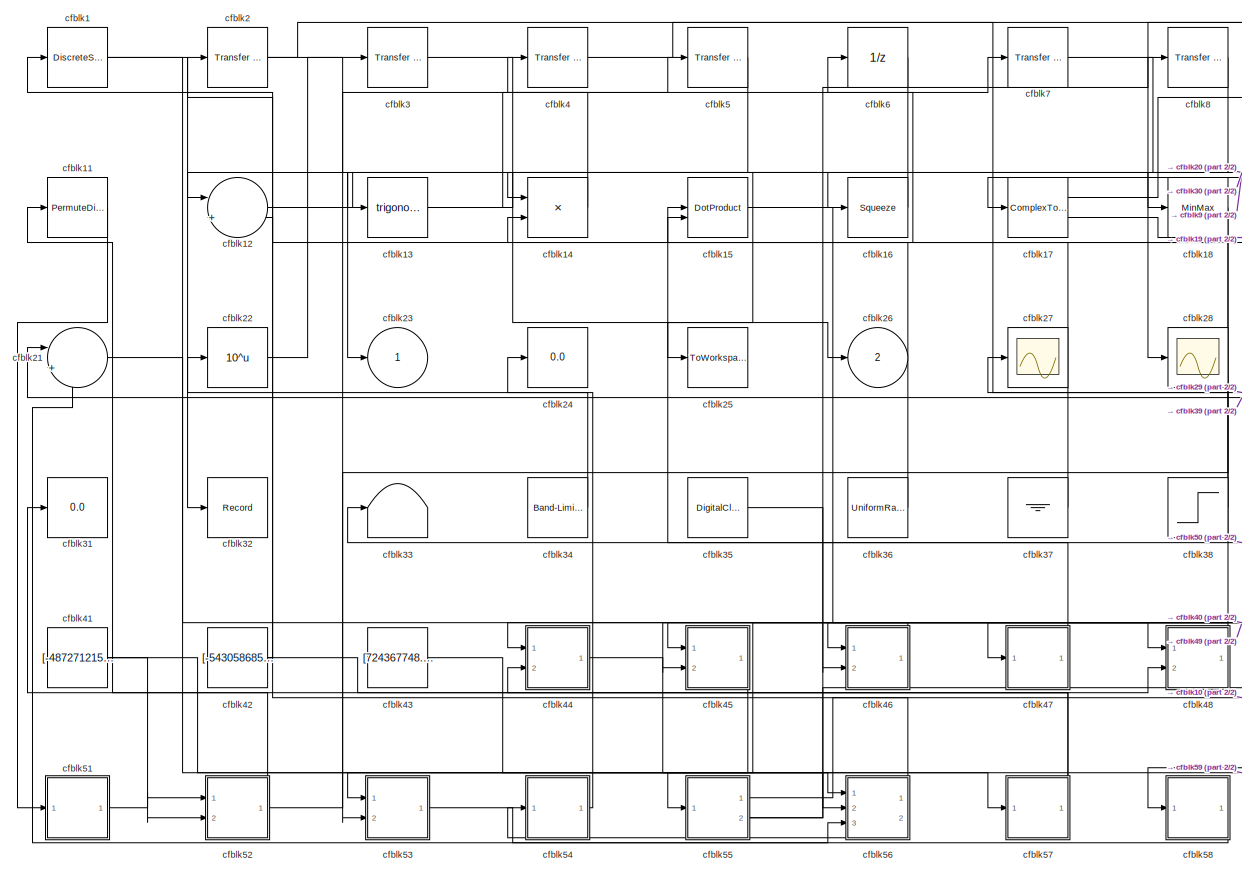
[diagram: root canvas - part 1/2, most of the canvas]
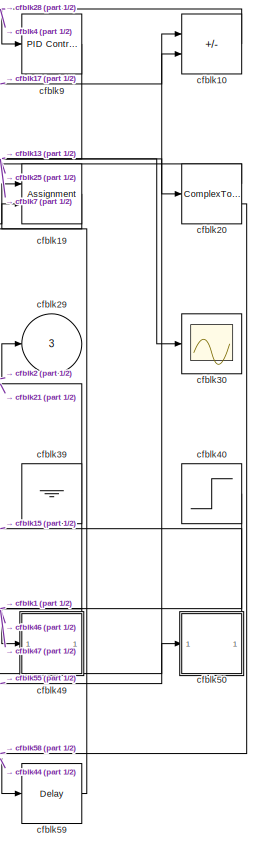
[diagram: root canvas - part 2/2, right side, full height]
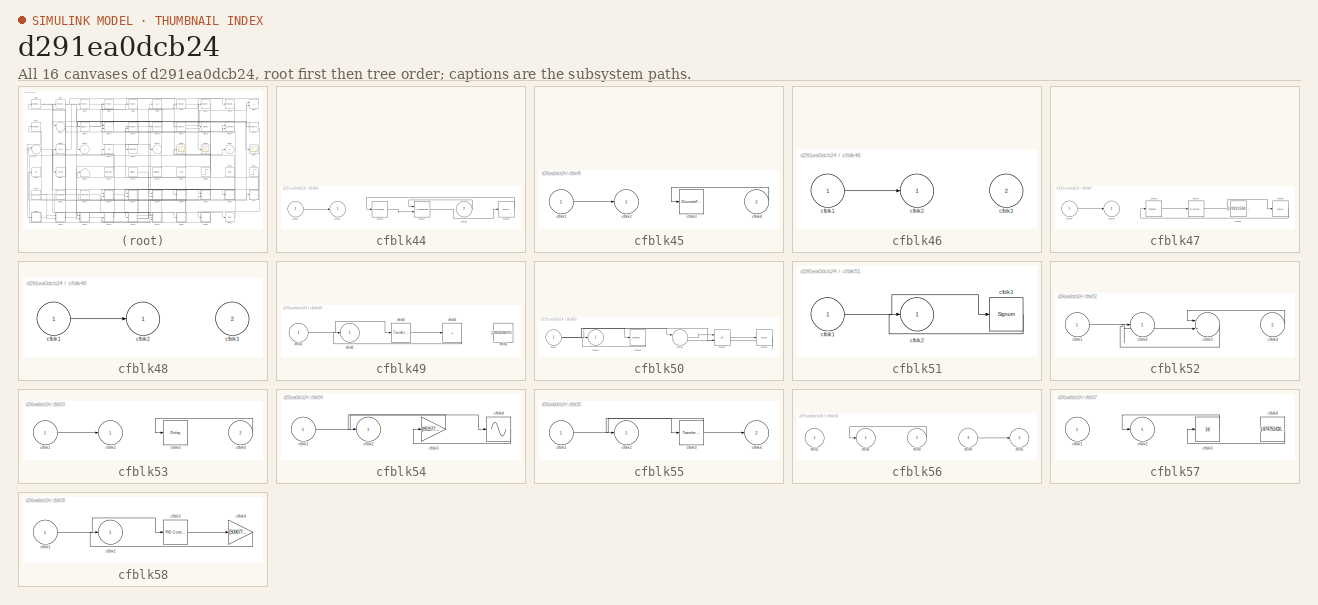
[diagram: thumbnail index - all 16 canvases of the model, root first then tree order]
MODEL slx_d291ea0dcb24
KIND model
CONFIG AbsTol = auto
CONFIG EnableMultiTasking = off
CONFIG FixedStep = auto
CONFIG MaxStep = auto
CONFIG MinStep = auto
CONFIG RelTol = 1e-3
CONFIG SampleTimeConstraint = Unconstrained
CONFIG SolverName = VariableStepAuto
CONFIG StartTime = 0.0
CONFIG StopTime = 10.0
BLOCK [DiscreteStateSpace] cfblk1
BLOCK [Sum] cfblk10
  IconShape = rectangular
  Inputs = -+
  Ports = [2, 1]
BLOCK [PermuteDimensions] cfblk11
BLOCK [Sum] cfblk12
  Inputs = |++
  Ports = [2, 1]
BLOCK [Trigonometry] cfblk13
  Ports = [1, 1]
BLOCK [Product] cfblk14
  Inputs = **
  Ports = [2, 1]
BLOCK [DotProduct] cfblk15
  OutDataTypeStr = Inherit: Inherit via internal rule
BLOCK [Squeeze] cfblk16
BLOCK [ComplexToRealImag] cfblk17
  Ports = [1, 2]
BLOCK [MinMax] cfblk18
  Ports = [1, 1]
BLOCK [Assignment] cfblk19
  DiagnosticForDimensions = Warning
  IndexOptions = Index vector (dialog)
  Indices = 1
  OutputSizes = 1
  Ports = [2, 1]
BLOCK [Reference] cfblk2  REF=simulink/Discrete/Transfer Fcn
Lead or Lag
  Ports = [1, 1]
  SourceBlock = simulink/Discrete/Transfer Fcn\nLead or Lag
  SourceProductBaseCode = SL
  SourceType = Lead or Lag Compensator
BLOCK [ComplexToMagnitudeAngle] cfblk20
  Ports = [1, 2]
BLOCK [Sum] cfblk21
  Inputs = |++
  Ports = [2, 1]
BLOCK [Math] cfblk22
  Operator = 10^u
  Ports = [1, 1]
BLOCK [Outport] cfblk23
BLOCK [Display] cfblk24
  Decimation = 1
  Ports = [1]
BLOCK [ToWorkspace] cfblk25
  FixptAsFi = on
  MaxDataPoints = inf
  Ports = [1]
  SampleTime = -1
  SaveFormat = Timeseries
  VariableName = ukugumc
BLOCK [Outport] cfblk26
  Port = 2
BLOCK [Scope] cfblk27
  Floating = off
  NumInputPorts = 1
  Ports = [1]
BLOCK [Scope] cfblk28
  Floating = off
  NumInputPorts = 1
  Ports = [1]
BLOCK [Outport] cfblk29
  Port = 3
BLOCK [Reference] cfblk3  REF=simulink/Discrete/Transfer Fcn
Real Zero
  Ports = [1, 1]
  SourceBlock = simulink/Discrete/Transfer Fcn\nReal Zero
  SourceProductBaseCode = SL
  SourceType = Transfer Fcn Real Zero
BLOCK [Scope] cfblk30
  Floating = off
  NumInputPorts = 1
  Ports = [1]
BLOCK [Display] cfblk31
  Decimation = 1
  Ports = [1]
BLOCK [Record] cfblk32
  FileSettingsInternal = {"entries":[{"content":{"excelSettings":{"content":{},"type":"Streamout.ExcelSettings"}},"type":"Streamout.FileSettingStorage","uuid":"087e2d95-c936-4501-9bad-2d545d7e3e24"}],"packageUris":["http://schema.mathworks.com/mf0/streamout_blocks/R2020a"],"version":"1.0"}
  Ports = [1]
  SignalsInternal = {"entries":[{"content":{"signals":[{"content":{"blockPath":["sampleModel132/cfblk32"],"channel":[],"dimensions":[1],"domain":"sampleModel132/cfblk32","lineColor":"#a2142f","plots":[1],"port":1,"sid":[""],"signalID":4625,"signalName":"cfblk5"},"type":"RecordBlkView.Signal","uuid":"40e91f18-cfa8-40fd-b18f-b4d847a9a709"}]},"type":"RecordBlkView.InputSignals","uuid":"2222fd6d-61fe-4729-9d65-212eba09ab...<+96ch>
  VisualizationBindings = {"sparklinesplugin":{"info":[{"bindingParametersList":[],"subplotID":1}]}}
BLOCK [Terminator] cfblk33
BLOCK [Reference] cfblk34  REF=simulink/Sources/Band-Limited
White Noise
  Ports = [0, 1]
  SourceBlock = simulink/Sources/Band-Limited\nWhite Noise
  SourceProductBaseCode = SL
  SourceType = Band-Limited White Noise.
BLOCK [DigitalClock] cfblk35
BLOCK [UniformRandomNumber] cfblk36
  Maximum = [1618918361.304771]
  Minimum = [-1183886040.224174]
  SampleTime = 0.1
  Seed = [91736459.000000]
BLOCK [Ground] cfblk37
BLOCK [Step] cfblk38
  After = [-667992317.417003]
  Before = [-806123686.112990]
  SampleTime = 0
  Time = [33.000000]
BLOCK [Ground] cfblk39
BLOCK [Reference] cfblk4  REF=simulink/Discrete/Transfer Fcn
First Order
  Ports = [1, 1]
  SourceBlock = simulink/Discrete/Transfer Fcn\nFirst Order
  SourceProductBaseCode = SL
  SourceType = First Order Transfer Fcn
BLOCK [Step] cfblk40
  After = [612571678.609495]
  Before = [80885400.866434]
  SampleTime = 0
  Time = [22.000000]
BLOCK [Constant] cfblk41
  SampleTime = 1
  Value = [-487271215.904113]
BLOCK [Constant] cfblk42
  SampleTime = 1
  Value = [-543058685.355425]
BLOCK [Constant] cfblk43
  SampleTime = 1
  Value = [724367748.976373]
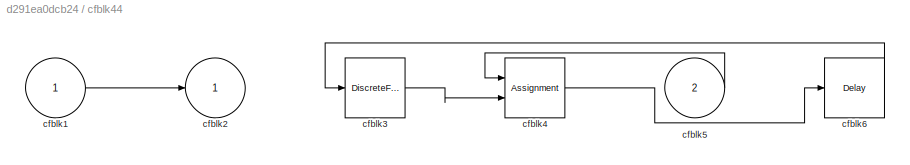
BLOCK [SubSystem] cfblk44
  Ports = [2, 1]
  RequestExecContextInheritance = off
BLOCK [Inport] cfblk44/cfblk1
BLOCK [Outport] cfblk44/cfblk2
BLOCK [DiscreteFilter] cfblk44/cfblk3
  InputPortMap = u0
  Ports = [1, 1]
  SampleTime = 1
BLOCK [Assignment] cfblk44/cfblk4
  DiagnosticForDimensions = Warning
  IndexOptions = Index vector (dialog)
  Indices = 1
  OutputSizes = 1
  Ports = [2, 1]
BLOCK [Inport] cfblk44/cfblk5
  Port = 2
BLOCK [Delay] cfblk44/cfblk6
  InputPortMap = u0
  Ports = [1, 1]
  SampleTime = 1
BLOCK [SubSystem] cfblk45
  Ports = [2, 1]
  RequestExecContextInheritance = off
BLOCK [Inport] cfblk45/cfblk1
BLOCK [Outport] cfblk45/cfblk2
BLOCK [DiscreteFir] cfblk45/cfblk3
  InputPortMap = u0
  OutputPortMap = o0
  Ports = [1, 1]
  SampleTime = 1
BLOCK [Inport] cfblk45/cfblk4
  Port = 2
BLOCK [SubSystem] cfblk46
  Ports = [2, 1]
  RequestExecContextInheritance = off
BLOCK [Inport] cfblk46/cfblk1
BLOCK [Outport] cfblk46/cfblk2
BLOCK [Inport] cfblk46/cfblk3
  Port = 2
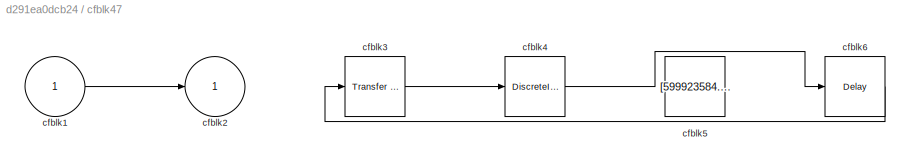
BLOCK [SubSystem] cfblk47
  Ports = [1, 1]
  RequestExecContextInheritance = off
BLOCK [Inport] cfblk47/cfblk1
BLOCK [Outport] cfblk47/cfblk2
BLOCK [Reference] cfblk47/cfblk3  REF=simulink/Discrete/Transfer Fcn
Real Zero
  Ports = [1, 1]
  SourceBlock = simulink/Discrete/Transfer Fcn\nReal Zero
  SourceProductBaseCode = SL
  SourceType = Transfer Fcn Real Zero
BLOCK [DiscreteIntegrator] cfblk47/cfblk4
  ICPrevOutput = DiscIntNeverNeededParam
  ICPrevScaledInput = DiscIntNeverNeededParam
  InitialConditionSetting = Auto
  Ports = [1, 1]
BLOCK [Constant] cfblk47/cfblk5
  SampleTime = 1
  Value = [599923584.292672]
BLOCK [Delay] cfblk47/cfblk6
  InputPortMap = u0
  Ports = [1, 1]
  SampleTime = 1
BLOCK [SubSystem] cfblk48
  Ports = [2, 1]
  RequestExecContextInheritance = off
BLOCK [Inport] cfblk48/cfblk1
BLOCK [Outport] cfblk48/cfblk2
BLOCK [Inport] cfblk48/cfblk3
  Port = 2
BLOCK [SubSystem] cfblk49
  Ports = [1, 1]
  RequestExecContextInheritance = off
BLOCK [Inport] cfblk49/cfblk1
BLOCK [Outport] cfblk49/cfblk2
BLOCK [Reference] cfblk49/cfblk3  REF=simulink/Discrete/Transfer Fcn
Real Zero
  Ports = [1, 1]
  SourceBlock = simulink/Discrete/Transfer Fcn\nReal Zero
  SourceProductBaseCode = SL
  SourceType = Transfer Fcn Real Zero
BLOCK [Sum] cfblk49/cfblk4
  IconShape = rectangular
  Inputs = +
  Ports = [1, 1]
BLOCK [Constant] cfblk49/cfblk5
  SampleTime = 1
  Value = [-393206075.841311]
BLOCK [Reference] cfblk5  REF=simulink/Discrete/Transfer Fcn
First Order
  Ports = [1, 1]
  SourceBlock = simulink/Discrete/Transfer Fcn\nFirst Order
  SourceProductBaseCode = SL
  SourceType = First Order Transfer Fcn
BLOCK [SubSystem] cfblk50
  Ports = [1, 1]
  RequestExecContextInheritance = off
BLOCK [Inport] cfblk50/cfblk1
BLOCK [Outport] cfblk50/cfblk2
BLOCK [Reference] cfblk50/cfblk3  REF=simulink/Discrete/Transfer Fcn
Lead or Lag
  Ports = [1, 1]
  SourceBlock = simulink/Discrete/Transfer Fcn\nLead or Lag
  SourceProductBaseCode = SL
  SourceType = Lead or Lag Compensator
BLOCK [Sum] cfblk50/cfblk4
  Inputs = |++
  Ports = [2, 1]
BLOCK [Sum] cfblk50/cfblk5
  IconShape = rectangular
  Inputs = +-
  Ports = [2, 1]
BLOCK [Delay] cfblk50/cfblk6
  InputPortMap = u0
  Ports = [1, 1]
  SampleTime = 1
BLOCK [SubSystem] cfblk51
  Ports = [1, 1]
  RequestExecContextInheritance = off
BLOCK [Inport] cfblk51/cfblk1
BLOCK [Outport] cfblk51/cfblk2
BLOCK [Signum] cfblk51/cfblk3
BLOCK [SubSystem] cfblk52
  Ports = [2, 1]
  RequestExecContextInheritance = off
BLOCK [Inport] cfblk52/cfblk1
BLOCK [Outport] cfblk52/cfblk2
BLOCK [Sum] cfblk52/cfblk3
  Inputs = |++
  Ports = [2, 1]
BLOCK [Inport] cfblk52/cfblk4
  Port = 2
BLOCK [SubSystem] cfblk53
  Ports = [2, 1]
  RequestExecContextInheritance = off
BLOCK [Inport] cfblk53/cfblk1
BLOCK [Outport] cfblk53/cfblk2
BLOCK [Delay] cfblk53/cfblk3
  InputPortMap = u0
  Ports = [1, 1]
  SampleTime = 1
BLOCK [Inport] cfblk53/cfblk4
  Port = 2
BLOCK [SubSystem] cfblk54
  Ports = [1, 1]
  RequestExecContextInheritance = off
BLOCK [Inport] cfblk54/cfblk1
BLOCK [Outport] cfblk54/cfblk2
BLOCK [Gain] cfblk54/cfblk3
  Gain = [851577862.489467]
BLOCK [Sin] cfblk54/cfblk4
  Ports = [1, 1]
  SampleTime = 0
  TimeSource = Use external signal
BLOCK [SubSystem] cfblk55
  Ports = [1, 2]
  RequestExecContextInheritance = off
BLOCK [Inport] cfblk55/cfblk1
BLOCK [Outport] cfblk55/cfblk2
BLOCK [Reference] cfblk55/cfblk3  REF=simulink/Discrete/Transfer Fcn
Lead or Lag
  Ports = [1, 1]
  SourceBlock = simulink/Discrete/Transfer Fcn\nLead or Lag
  SourceProductBaseCode = SL
  SourceType = Lead or Lag Compensator
BLOCK [Outport] cfblk55/cfblk4
  Port = 2
BLOCK [SubSystem] cfblk56
  Ports = [3, 2]
  RequestExecContextInheritance = off
BLOCK [Inport] cfblk56/cfblk1
BLOCK [Outport] cfblk56/cfblk2
BLOCK [Inport] cfblk56/cfblk3
  Port = 2
BLOCK [Inport] cfblk56/cfblk4
  Port = 3
BLOCK [Outport] cfblk56/cfblk5
  Port = 2
BLOCK [SubSystem] cfblk57
  Ports = [1, 1]
  RequestExecContextInheritance = off
BLOCK [Inport] cfblk57/cfblk1
BLOCK [Outport] cfblk57/cfblk2
BLOCK [Abs] cfblk57/cfblk3
  SaturateOnIntegerOverflow = off
BLOCK [Constant] cfblk57/cfblk4
  SampleTime = 1
  Value = [-974751430.195596]
BLOCK [SubSystem] cfblk58
  Ports = [1, 1]
  RequestExecContextInheritance = off
BLOCK [Inport] cfblk58/cfblk1
BLOCK [Outport] cfblk58/cfblk2
BLOCK [Reference] cfblk58/cfblk3  REF=slpidlib/PID Controller
  Ports = [1, 1]
  SourceBlock = slpidlib/PID Controller
  SourceProductBaseCode = SL
  SourceType = PID 1dof
BLOCK [Gain] cfblk58/cfblk4
  Gain = [509677771.504643]
BLOCK [Delay] cfblk59
  InputPortMap = u0
  Ports = [1, 1]
  SampleTime = 1
BLOCK [UnitDelay] cfblk6
  HasFrameUpgradeWarning = on
BLOCK [Reference] cfblk7  REF=simulink/Discrete/Transfer Fcn
Lead or Lag
  Ports = [1, 1]
  SourceBlock = simulink/Discrete/Transfer Fcn\nLead or Lag
  SourceProductBaseCode = SL
  SourceType = Lead or Lag Compensator
BLOCK [Reference] cfblk8  REF=simulink/Discrete/Transfer Fcn
Real Zero
  Ports = [1, 1]
  SourceBlock = simulink/Discrete/Transfer Fcn\nReal Zero
  SourceProductBaseCode = SL
  SourceType = Transfer Fcn Real Zero
BLOCK [Reference] cfblk9  REF=slpidlib/PID Controller
  Ports = [1, 1]
  SourceBlock = slpidlib/PID Controller
  SourceProductBaseCode = SL
  SourceType = PID 1dof
LINE cfblk10:1 -> cfblk28:1
LINE cfblk11:1 -> cfblk51:1
LINE cfblk12:1 -> cfblk18:1
NET cfblk13:1 -> cfblk20:1, cfblk5:1
LINE cfblk14:1 -> cfblk4:1
LINE cfblk15:1 -> cfblk48:1
LINE cfblk16:1 -> cfblk13:1
LINE cfblk17:1 -> cfblk10:2
LINE cfblk17:2 -> cfblk19:1
LINE cfblk18:1 -> cfblk53:2
LINE cfblk19:1 -> cfblk15:2
NET cfblk1:1 -> cfblk12:1, cfblk49:1
LINE cfblk20:1 -> cfblk17:1
LINE cfblk20:2 -> cfblk58:1
LINE cfblk21:1 -> cfblk57:1
LINE cfblk22:1 -> cfblk3:1
NET cfblk2:1 -> cfblk16:1, cfblk29:1
LINE cfblk34:1 -> cfblk22:1
LINE cfblk35:1 -> cfblk46:2
LINE cfblk36:1 -> cfblk1:1
LINE cfblk37:1 -> cfblk14:2
NET cfblk38:1 -> cfblk27:1, cfblk45:2, cfblk6:1
NET cfblk39:1 -> cfblk21:1, cfblk55:1
LINE cfblk3:1 -> cfblk26:1
LINE cfblk40:1 -> cfblk47:1
NET cfblk41:1 -> cfblk52:2, cfblk56:1
NET cfblk42:1 -> cfblk12:2, cfblk48:2
LINE cfblk43:1 -> cfblk56:2
LINE cfblk44/cfblk1:1 -> cfblk44/cfblk2:1
LINE cfblk44/cfblk3:1 -> cfblk44/cfblk4:2
LINE cfblk44/cfblk4:1 -> cfblk44/cfblk6:1
LINE cfblk44/cfblk5:1 -> cfblk44/cfblk4:1
LINE cfblk44/cfblk6:1 -> cfblk44/cfblk3:1
LINE cfblk44:1 -> cfblk59:1
LINE cfblk45/cfblk1:1 -> cfblk45/cfblk2:1
LINE cfblk45/cfblk4:1 -> cfblk45/cfblk3:1
LINE cfblk45:1 -> cfblk53:1
LINE cfblk46/cfblk1:1 -> cfblk46/cfblk2:1
LINE cfblk46:1 -> cfblk45:1
LINE cfblk47/cfblk1:1 -> cfblk47/cfblk2:1
LINE cfblk47/cfblk3:1 -> cfblk47/cfblk4:1
LINE cfblk47/cfblk4:1 -> cfblk47/cfblk6:1
LINE cfblk47/cfblk6:1 -> cfblk47/cfblk3:1
LINE cfblk47:1 -> cfblk33:1
LINE cfblk48/cfblk1:1 -> cfblk48/cfblk2:1
LINE cfblk48:1 -> cfblk44:1
LINE cfblk49/cfblk1:1 -> cfblk49/cfblk3:1
LINE cfblk49/cfblk3:1 -> cfblk49/cfblk4:1
LINE cfblk49/cfblk4:1 -> cfblk49/cfblk2:1
LINE cfblk49:1 -> cfblk46:1
LINE cfblk4:1 -> cfblk9:1
NET cfblk50/cfblk1:1 -> cfblk50/cfblk3:1, cfblk50/cfblk4:1, cfblk50/cfblk5:2
LINE cfblk50/cfblk3:1 -> cfblk50/cfblk2:1
LINE cfblk50/cfblk4:1 -> cfblk50/cfblk5:1
LINE cfblk50/cfblk5:1 -> cfblk50/cfblk6:1
LINE cfblk50/cfblk6:1 -> cfblk50/cfblk4:2
LINE cfblk50:1 -> cfblk15:1
LINE cfblk51/cfblk1:1 -> cfblk51/cfblk3:1
LINE cfblk51/cfblk3:1 -> cfblk51/cfblk2:1
LINE cfblk51:1 -> cfblk52:1
LINE cfblk52/cfblk1:1 -> cfblk52/cfblk3:2
LINE cfblk52/cfblk3:1 -> cfblk52/cfblk2:1
LINE cfblk52/cfblk4:1 -> cfblk52/cfblk3:1
NET cfblk52:1 -> cfblk31:1, cfblk7:1
LINE cfblk53/cfblk1:1 -> cfblk53/cfblk2:1
LINE cfblk53/cfblk4:1 -> cfblk53/cfblk3:1
LINE cfblk53:1 -> cfblk56:3
LINE cfblk54/cfblk1:1 -> cfblk54/cfblk4:1
LINE cfblk54/cfblk3:1 -> cfblk54/cfblk2:1
LINE cfblk54/cfblk4:1 -> cfblk54/cfblk3:1
LINE cfblk54:1 -> cfblk24:1
LINE cfblk55/cfblk1:1 -> cfblk55/cfblk3:1
NET cfblk55/cfblk3:1 -> cfblk55/cfblk2:1, cfblk55/cfblk4:1
LINE cfblk55:1 -> cfblk10:1
NET cfblk55:2 -> cfblk50:1, cfblk8:1
LINE cfblk56/cfblk3:1 -> cfblk56/cfblk2:1
LINE cfblk56/cfblk4:1 -> cfblk56/cfblk5:1
LINE cfblk56:1 -> cfblk2:1
LINE cfblk56:2 -> cfblk54:1
LINE cfblk57/cfblk3:1 -> cfblk57/cfblk2:1
LINE cfblk57/cfblk4:1 -> cfblk57/cfblk3:1
NET cfblk57:1 -> cfblk11:1, cfblk44:2
LINE cfblk58/cfblk1:1 -> cfblk58/cfblk3:1
LINE cfblk58/cfblk3:1 -> cfblk58/cfblk4:1
LINE cfblk58/cfblk4:1 -> cfblk58/cfblk2:1
LINE cfblk58:1 -> cfblk21:2
LINE cfblk59:1 -> cfblk19:2
LINE cfblk5:1 -> cfblk32:1
LINE cfblk6:1 -> cfblk14:1
LINE cfblk7:1 -> cfblk30:1
LINE cfblk8:1 -> cfblk23:1
LINE cfblk9:1 -> cfblk25:1
note: NET lines group one-source signal fan-out (src -> all destinations, sorted); 1:1 wires keep LINE
